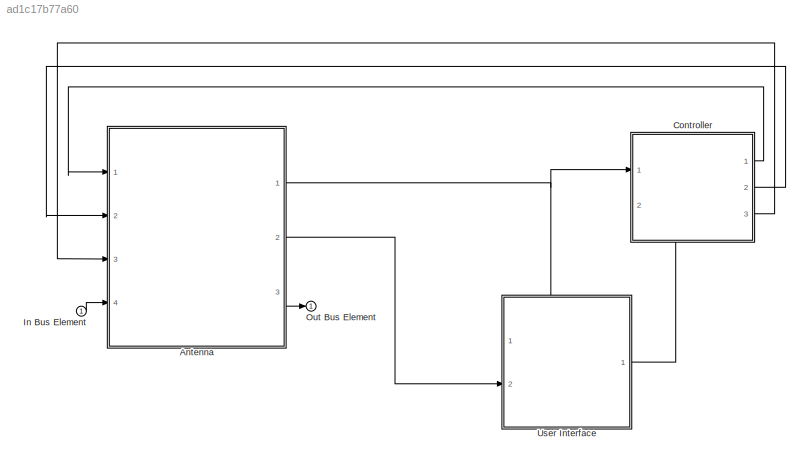
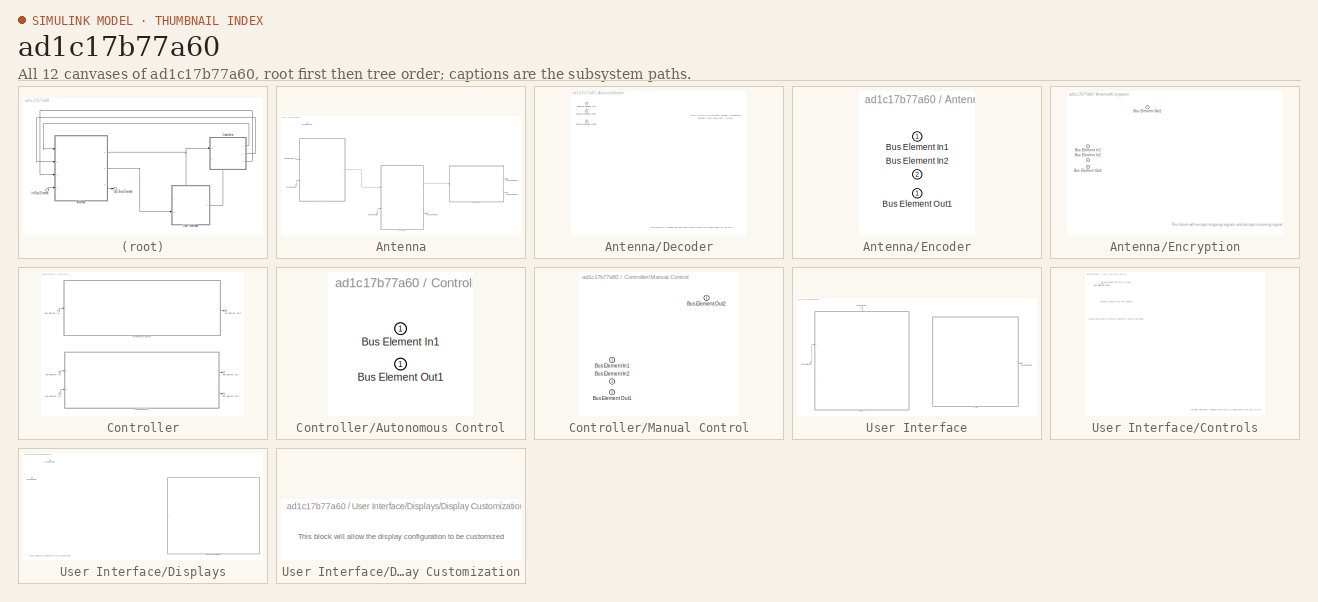
[diagram: thumbnail index - all 12 canvases of the model, root first then tree order]
MODEL slx_ad1c17b77a60
KIND model
CONFIG AbsTol = auto
CONFIG EnableMultiTasking = off
CONFIG FixedStep = auto
CONFIG MaxStep = auto
CONFIG MinStep = auto
CONFIG RelTol = 1e-3
CONFIG SampleTimeConstraint = Unconstrained
CONFIG SolverName = VariableStepAuto
CONFIG StartTime = 0.0
CONFIG StopTime = 10.0
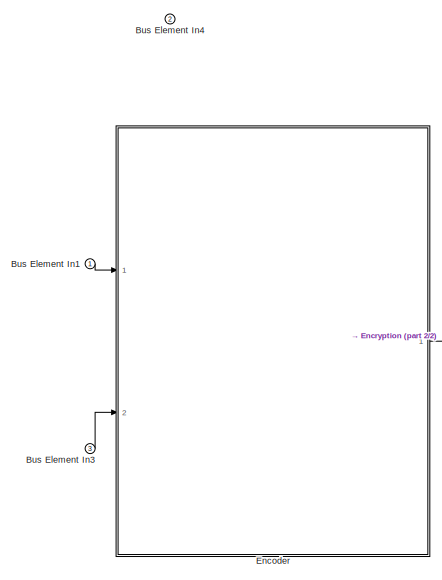
[diagram: Antenna - part 1/2, middle left region]
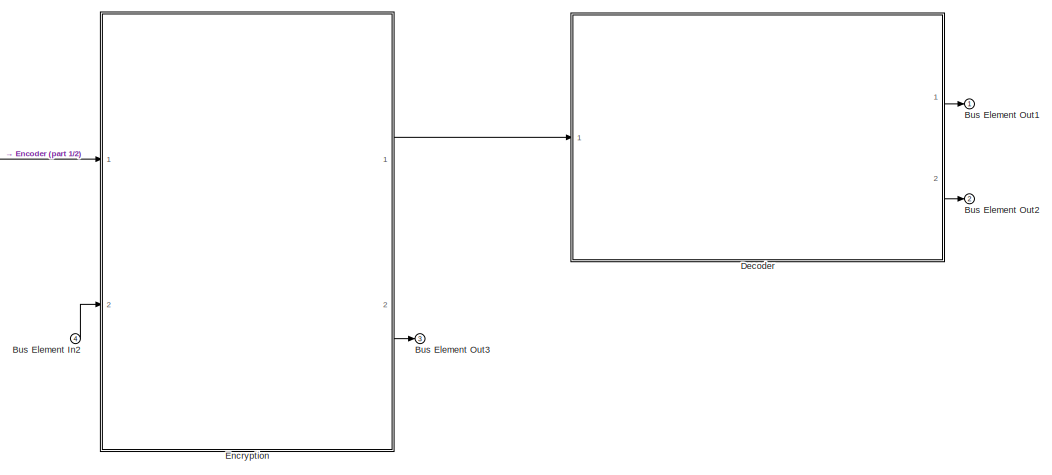
[diagram: Antenna - part 2/2, bottom right region]
BLOCK [SubSystem] Antenna
  PortSchema = {"entries":[{"content":{"headerSize":26,"margin":15,"minimumSpacing":25,"sides":[{"content":{"connectorIds":["In1","In2","In3","In4"]},"type":"ConnectorPlacement.EquallySpacedRectSide","uuid":"8f51257f-f627-4f58-a4af-3e0fb88ba4bc"},{"content":{"connectorIds":["Out1","Out2","Out3"],"side":"RIGHT"},"type":"ConnectorPlacement.EquallySpacedRectSide","uuid":"f1fa1950-8e47-40b7-8d13-b3d0804be378"},{"con...<+464ch>
  Ports = [4, 3]
  RequestExecContextInheritance = off
BLOCK [Inport] Antenna/Bus Element In1
BLOCK [Inport] Antenna/Bus Element In2
  Port = 4
BLOCK [Inport] Antenna/Bus Element In3
  Port = 3
BLOCK [Inport] Antenna/Bus Element In4
  Port = 2
BLOCK [Outport] Antenna/Bus Element Out1
BLOCK [Outport] Antenna/Bus Element Out2
  Port = 2
BLOCK [Outport] Antenna/Bus Element Out3
  Port = 3
BLOCK [SubSystem] Antenna/Decoder
  PortSchema = {"entries":[{"content":{"headerSize":26,"margin":15,"minimumSpacing":25,"sides":[{"content":{"connectorIds":["In1"]},"type":"ConnectorPlacement.EquallySpacedRectSide","uuid":"8f51257f-f627-4f58-a4af-3e0fb88ba4bc"},{"content":{"connectorIds":["Out1","Out2"],"side":"RIGHT"},"type":"ConnectorPlacement.EquallySpacedRectSide","uuid":"f1fa1950-8e47-40b7-8d13-b3d0804be378"},{"content":{"connectorIds":[],...<+439ch>
  Ports = [1, 2]
  RequestExecContextInheritance = off
BLOCK [Inport] Antenna/Decoder/Bus Element In1
BLOCK [Outport] Antenna/Decoder/Bus Element Out1
BLOCK [Outport] Antenna/Decoder/Bus Element Out2
  Port = 2
BLOCK [SubSystem] Antenna/Encoder
  PortSchema = {"entries":[{"content":{"headerSize":26,"margin":15,"minimumSpacing":25,"sides":[{"content":{"connectorIds":["In1","In2"]},"type":"ConnectorPlacement.EquallySpacedRectSide","uuid":"8f51257f-f627-4f58-a4af-3e0fb88ba4bc"},{"content":{"connectorIds":["Out1"],"side":"RIGHT"},"type":"ConnectorPlacement.EquallySpacedRectSide","uuid":"f1fa1950-8e47-40b7-8d13-b3d0804be378"},{"content":{"connectorIds":[],"...<+438ch>
  Ports = [2, 1]
  RequestExecContextInheritance = off
BLOCK [Inport] Antenna/Encoder/Bus Element In1
BLOCK [Inport] Antenna/Encoder/Bus Element In2
  Port = 2
BLOCK [Outport] Antenna/Encoder/Bus Element Out1
BLOCK [SubSystem] Antenna/Encryption
  PortSchema = {"entries":[{"content":{"headerSize":26,"margin":15,"minimumSpacing":25,"sides":[{"content":{"connectorIds":["In1","In2"]},"type":"ConnectorPlacement.EquallySpacedRectSide","uuid":"8f51257f-f627-4f58-a4af-3e0fb88ba4bc"},{"content":{"connectorIds":["Out1","Out2"],"side":"RIGHT"},"type":"ConnectorPlacement.EquallySpacedRectSide","uuid":"f1fa1950-8e47-40b7-8d13-b3d0804be378"},{"content":{"connectorId...<+445ch>
  Ports = [2, 2]
  RequestExecContextInheritance = off
BLOCK [Inport] Antenna/Encryption/Bus Element In1
BLOCK [Inport] Antenna/Encryption/Bus Element In2
  Port = 2
BLOCK [Outport] Antenna/Encryption/Bus Element Out1
  Port = 2
BLOCK [Outport] Antenna/Encryption/Bus Element Out2
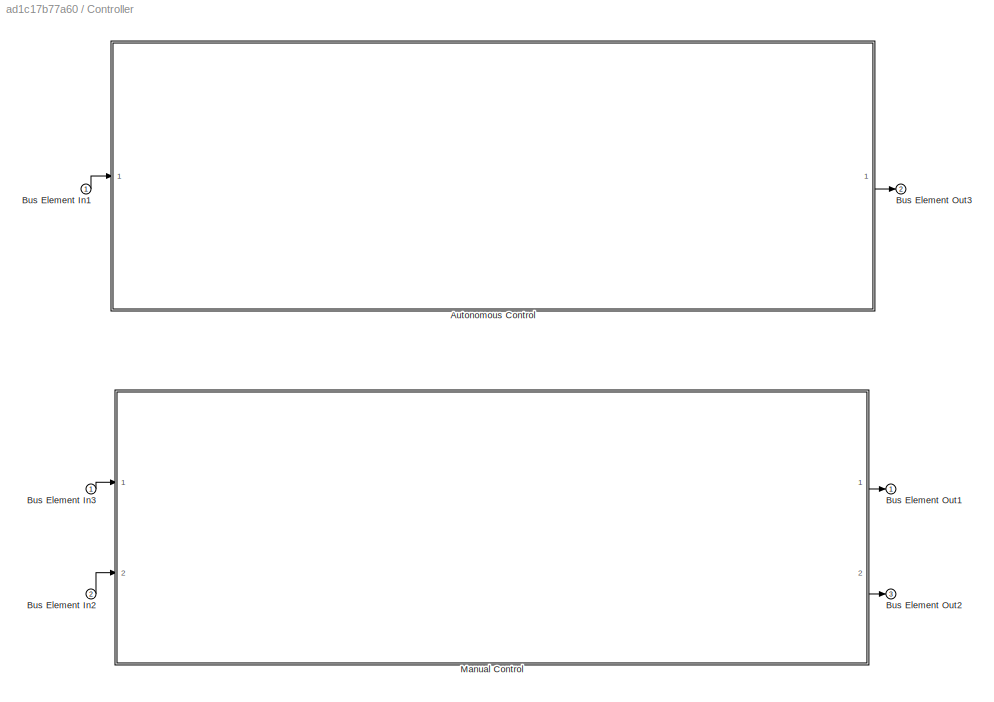
BLOCK [SubSystem] Controller
  PortSchema = {"entries":[{"content":{"headerSize":26,"margin":15,"minimumSpacing":25,"sides":[{"content":{"connectorIds":["In1"]},"type":"ConnectorPlacement.EquallySpacedRectSide","uuid":"8f51257f-f627-4f58-a4af-3e0fb88ba4bc"},{"content":{"connectorIds":["Out1","Out2","Out3"],"side":"RIGHT"},"type":"ConnectorPlacement.EquallySpacedRectSide","uuid":"f1fa1950-8e47-40b7-8d13-b3d0804be378"},{"content":{"connectorI...<+595ch>
  Ports = [2, 3]
  RequestExecContextInheritance = off
BLOCK [SubSystem] Controller/Autonomous Control
  PortSchema = {"entries":[{"content":{"headerSize":26,"margin":15,"minimumSpacing":25,"sides":[{"content":{"connectorIds":["In1"]},"type":"ConnectorPlacement.EquallySpacedRectSide","uuid":"8f51257f-f627-4f58-a4af-3e0fb88ba4bc"},{"content":{"connectorIds":["Out1"],"side":"RIGHT"},"type":"ConnectorPlacement.EquallySpacedRectSide","uuid":"f1fa1950-8e47-40b7-8d13-b3d0804be378"},{"content":{"connectorIds":[],"side":...<+432ch>
  Ports = [1, 1]
  RequestExecContextInheritance = off
BLOCK [Inport] Controller/Autonomous Control/Bus Element In1
BLOCK [Outport] Controller/Autonomous Control/Bus Element Out1
BLOCK [Inport] Controller/Bus Element In1
BLOCK [Inport] Controller/Bus Element In2
  Port = 2
BLOCK [Inport] Controller/Bus Element In3
BLOCK [Outport] Controller/Bus Element Out1
BLOCK [Outport] Controller/Bus Element Out2
  Port = 3
BLOCK [Outport] Controller/Bus Element Out3
  Port = 2
BLOCK [SubSystem] Controller/Manual Control
  PortSchema = {"entries":[{"content":{"headerSize":26,"margin":15,"minimumSpacing":25,"sides":[{"content":{"connectorIds":["In1","In2"]},"type":"ConnectorPlacement.EquallySpacedRectSide","uuid":"8f51257f-f627-4f58-a4af-3e0fb88ba4bc"},{"content":{"connectorIds":["Out1","Out2"],"side":"RIGHT"},"type":"ConnectorPlacement.EquallySpacedRectSide","uuid":"f1fa1950-8e47-40b7-8d13-b3d0804be378"},{"content":{"connectorId...<+445ch>
  Ports = [2, 2]
  RequestExecContextInheritance = off
BLOCK [Inport] Controller/Manual Control/Bus Element In1
BLOCK [Inport] Controller/Manual Control/Bus Element In2
  Port = 2
BLOCK [Outport] Controller/Manual Control/Bus Element Out1
  Port = 2
BLOCK [Outport] Controller/Manual Control/Bus Element Out2
BLOCK [Inport] In Bus Element
BLOCK [Outport] Out Bus Element
BLOCK [SubSystem] User Interface
  PortSchema = {"entries":[{"content":{"headerSize":26,"margin":15,"minimumSpacing":25,"sides":[{"content":{"connectorIds":["In2"]},"type":"ConnectorPlacement.EquallySpacedRectSide","uuid":"8f51257f-f627-4f58-a4af-3e0fb88ba4bc"},{"content":{"connectorIds":["Out1"],"side":"RIGHT"},"type":"ConnectorPlacement.EquallySpacedRectSide","uuid":"f1fa1950-8e47-40b7-8d13-b3d0804be378"},{"content":{"connectorIds":["In1"],"s...<+437ch>
  Ports = [2, 1]
  RequestExecContextInheritance = off
BLOCK [Inport] User Interface/Bus Element In1
BLOCK [Inport] User Interface/Bus Element In2
  Port = 2
BLOCK [Outport] User Interface/Bus Element Out1
BLOCK [SubSystem] User Interface/Controls
  PortSchema = {"entries":[{"content":{"headerSize":26,"margin":15,"minimumSpacing":25,"sides":[{"content":{"connectorIds":[]},"type":"ConnectorPlacement.EquallySpacedRectSide","uuid":"8f51257f-f627-4f58-a4af-3e0fb88ba4bc"},{"content":{"connectorIds":["Out1"],"side":"RIGHT"},"type":"ConnectorPlacement.EquallySpacedRectSide","uuid":"f1fa1950-8e47-40b7-8d13-b3d0804be378"},{"content":{"connectorIds":[],"side":"TOP"...<+427ch>
  Ports = [0, 1]
  RequestExecContextInheritance = off
BLOCK [Outport] User Interface/Controls/Bus Element Out1
BLOCK [SubSystem] User Interface/Displays
  PortSchema = {"entries":[{"content":{"headerSize":26,"margin":15,"minimumSpacing":25,"sides":[{"content":{"connectorIds":["In1"]},"type":"ConnectorPlacement.EquallySpacedRectSide","uuid":"8f51257f-f627-4f58-a4af-3e0fb88ba4bc"},{"content":{"connectorIds":[],"side":"RIGHT"},"type":"ConnectorPlacement.EquallySpacedRectSide","uuid":"f1fa1950-8e47-40b7-8d13-b3d0804be378"},{"content":{"connectorIds":["In2"],"side":"...<+431ch>
  Ports = [2]
  RequestExecContextInheritance = off
BLOCK [Inport] User Interface/Displays/Bus Element In1
  Port = 2
BLOCK [Inport] User Interface/Displays/Bus Element In2
BLOCK [SubSystem] User Interface/Displays/Display Customization
  PortSchema = {"entries":[{"content":{"headerSize":26,"margin":15,"minimumSpacing":25,"sides":[{"content":{"connectorIds":[]},"type":"ConnectorPlacement.EquallySpacedRectSide","uuid":"8f51257f-f627-4f58-a4af-3e0fb88ba4bc"},{"content":{"connectorIds":[],"side":"RIGHT"},"type":"ConnectorPlacement.EquallySpacedRectSide","uuid":"f1fa1950-8e47-40b7-8d13-b3d0804be378"},{"content":{"connectorIds":[],"side":"TOP"},"typ...<+421ch>
  Ports = []
  RequestExecContextInheritance = off
ANNOTATION Antenna/Decoder: This block will decode the decrypted incoming data into usable data for the Ground Station
ANNOTATION Antenna/Decoder: This is the MAVLink signal decoder, placeholder because i don't know how it works
ANNOTATION Antenna/Encryption: This block will encrypt outgoing signals and decrypt incoming signals
ANNOTATION User Interface/Controls: Inital Position Setting Of Drones
ANNOTATION User Interface/Controls: Manual Command Of Drone By Operator (Camera and Flight)
ANNOTATION User Interface/Controls: Recall Of Drones From Set Positions
ANNOTATION User Interface/Controls: This block will convert analogue commands to a digital signal to be sent to the Controller
ANNOTATION User Interface/Displays: This block will display the data from the drone on the operator's monitors
ANNOTATION User Interface/Displays/Display Customization: This block will allow the display configuration to be customized
LINE Antenna/Bus Element In1:1 -> Antenna/Encoder:1
LINE Antenna/Bus Element In2:1 -> Antenna/Encryption:2
LINE Antenna/Bus Element In3:1 -> Antenna/Encoder:2
LINE Antenna/Decoder:1 -> Antenna/Bus Element Out1:1
LINE Antenna/Decoder:2 -> Antenna/Bus Element Out2:1
LINE Antenna/Encoder:1 -> Antenna/Encryption:1
LINE Antenna/Encryption:1 -> Antenna/Decoder:1
LINE Antenna/Encryption:2 -> Antenna/Bus Element Out3:1
NET Antenna:1 -> Controller:1, User Interface:1
LINE Antenna:2 -> User Interface:2
LINE Antenna:3 -> Out Bus Element:1
LINE Controller/Autonomous Control:1 -> Controller/Bus Element Out3:1
LINE Controller/Bus Element In1:1 -> Controller/Autonomous Control:1
LINE Controller/Bus Element In2:1 -> Controller/Manual Control:2
LINE Controller/Bus Element In3:1 -> Controller/Manual Control:1
LINE Controller/Manual Control:1 -> Controller/Bus Element Out1:1
LINE Controller/Manual Control:2 -> Controller/Bus Element Out2:1
LINE Controller:1 -> Antenna:1
LINE Controller:2 -> Antenna:2
LINE Controller:3 -> Antenna:3
LINE In Bus Element:1 -> Antenna:4
LINE User Interface/Bus Element In1:1 -> User Interface/Displays:2
LINE User Interface/Bus Element In2:1 -> User Interface/Displays:1
LINE User Interface/Controls:1 -> User Interface/Bus Element Out1:1
LINE User Interface:1 -> Controller:2
note: NET lines group one-source signal fan-out (src -> all destinations, sorted); 1:1 wires keep LINE
